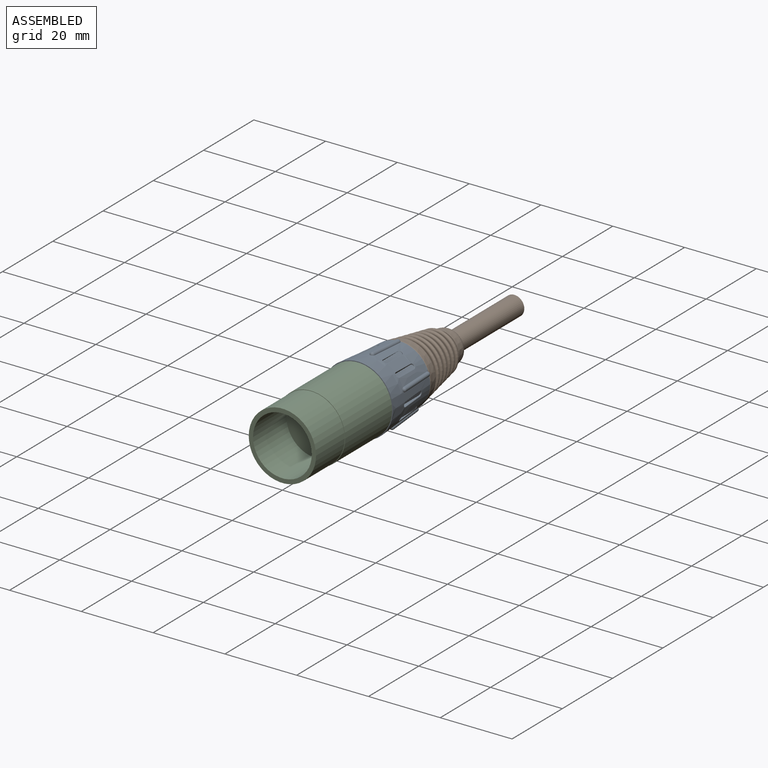
[diagram: assembled view]
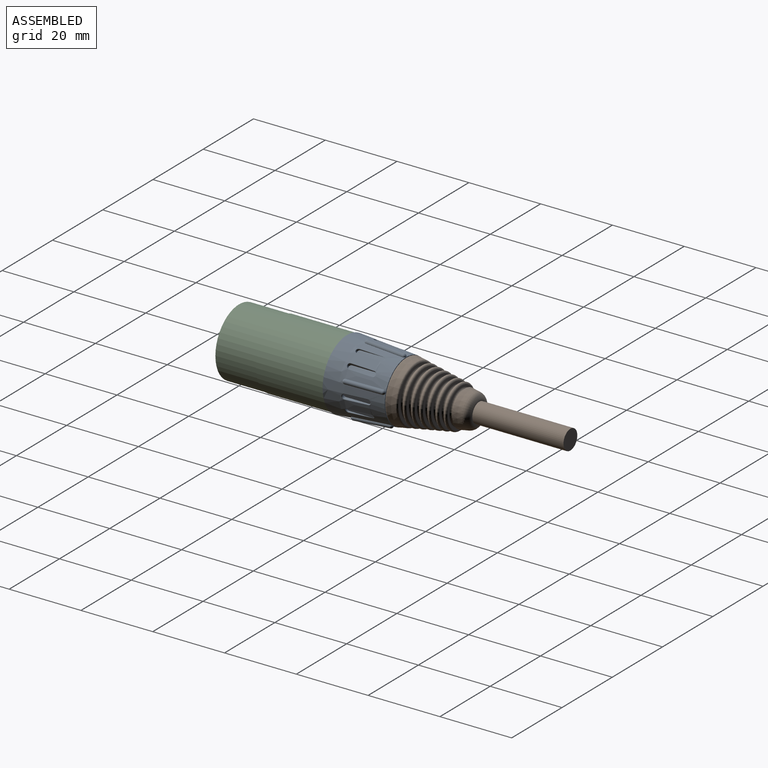
[diagram: assembled view, second angle]
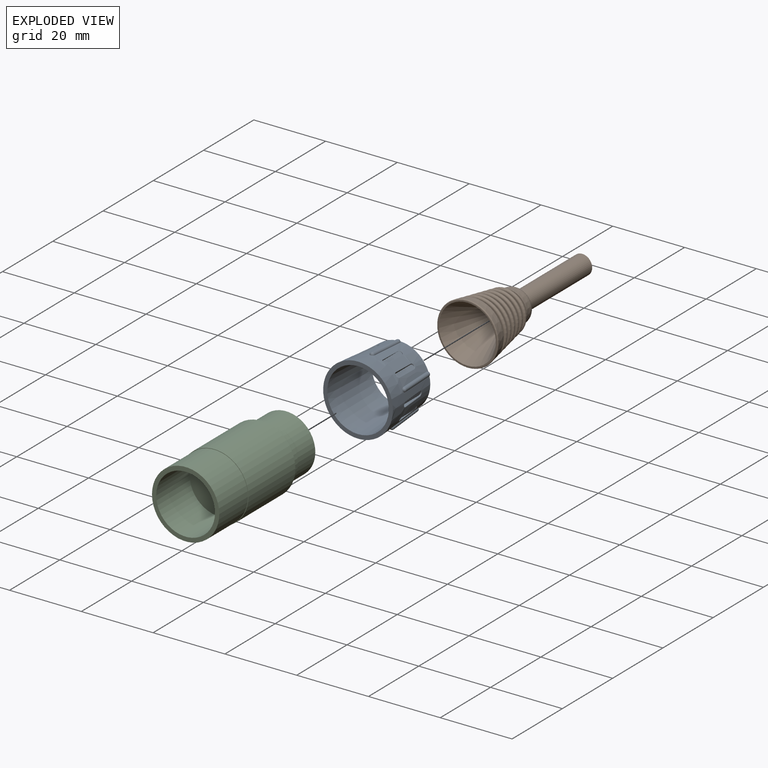
[diagram: exploded view]
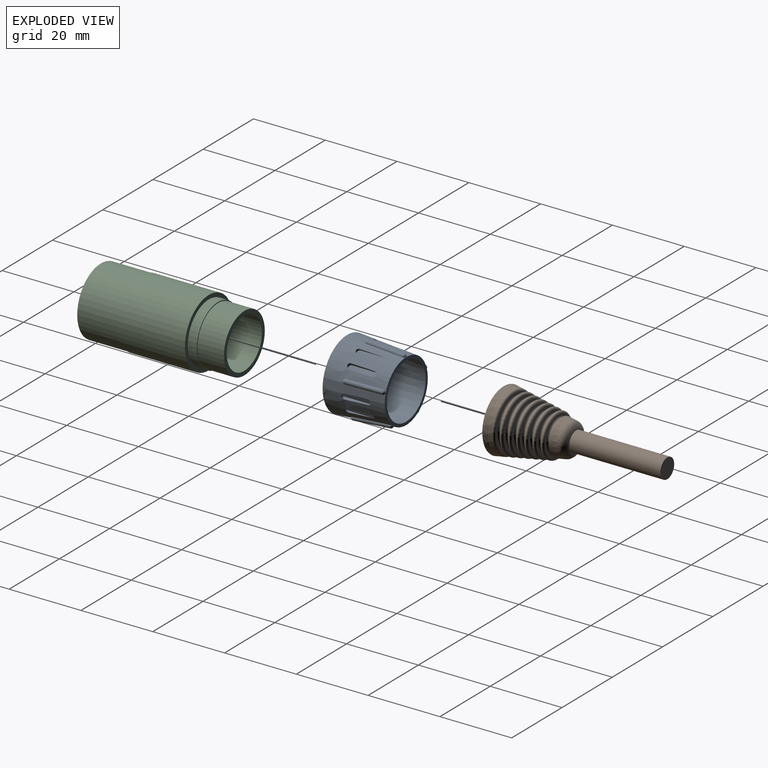
[diagram: exploded view, second angle]
ASSEMBLY  parts=3 mates=2
PART A: 159 faces, bbox 20.2x30x20.1 mm
  f0: cylinder r=0.64mm len=0.64mm, axis (-0.95,-0.07,-0.31), area 0mm2, adj f12,f43,f46
  f1: cylinder r=0.64mm len=0.64mm, axis (-0.95,-0.07,-0.31), area 0mm2, adj f12,f45,f48
  f2: cylinder r=0.64mm len=0.64mm, axis (-0.59,-0.07,0.81), area 0mm2, adj f12,f36,f39
  f3: cylinder r=0.64mm len=0.64mm, axis (-0.59,-0.07,0.81), area 0mm2, adj f12,f38,f41
  f4: cylinder r=0.64mm len=0.64mm, axis (0.59,-0.07,0.81), area 0mm2, adj f12,f29,f32
  f5: cylinder r=0.64mm len=0.64mm, axis (0.59,-0.07,0.81), area 0mm2, adj f12,f31,f34
  f6: cylinder r=0.64mm len=0.64mm, axis (0.95,-0.07,-0.31), area 0mm2, adj f12,f22,f25
  f7: cylinder r=0.64mm len=0.64mm, axis (0.95,-0.07,-0.31), area 0mm2, adj f12,f24,f27
  f8: cylinder r=0.64mm len=0.64mm, axis (0,-0.07,-1), area 0mm2, adj f12,f15,f18
  f9: cylinder r=0.64mm len=0.64mm, axis (0,-0.07,-1), area 0mm2, adj f12,f17,f20
  f10: plane 19.43x19.43mm, normal (0,-1,0), area 65.7mm2, adj f12,f13
  f11: plane 17.15x17.15mm, normal (0,1,0), area 44.3mm2, adj f12,f13
  f12: cone r=9.72mm half-angle=4deg, axis (0,-1,0), area 759.9mm2, adj f0,f1,f2,f3,f4,f5,f6,f7
  f13: cone r=8.57mm half-angle=3deg, axis (0,-1,0), area 845.6mm2, adj f10,f11
  f14: cylinder r=0.64mm len=0.64mm, axis (0,-0.07,-1), area 0mm2, adj f12,f17,f18
  f15: plane 10.14x0.73mm, normal (-1,0,0), area 0.2mm2, adj f8,f12,f16,f19
  f16: cylinder r=0.64mm len=0.64mm, axis (0,-0.07,-1), area 0mm2, adj f12,f15,f20
  f17: plane 10.14x0.73mm, normal (1,0,0), area 0.2mm2, adj f9,f12,f14,f19
  f18: sphere r=0.64mm, area 1.3mm2, adj f8,f14,f19
  f19: cylinder r=0.64mm len=10.18mm, axis (0,-1,0.07), area 20.3mm2, adj f15,f17,f18,f20
  f20: sphere r=0.64mm, area 1.3mm2, adj f9,f16,f19
  f21: cylinder r=0.64mm len=0.64mm, axis (0.95,-0.07,-0.31), area 0mm2, adj f12,f24,f25
  f22: plane 10.14x0.69mm, normal (-0.31,0,-0.95), area 0.2mm2, adj f6,f12,f23,f26
  f23: cylinder r=0.64mm len=0.64mm, axis (0.95,-0.07,-0.31), area 0mm2, adj f12,f22,f27
  f24: plane 10.14x0.69mm, normal (0.31,0,0.95), area 0.2mm2, adj f7,f12,f21,f26
  f25: sphere r=0.64mm, area 1.3mm2, adj f6,f21,f26
  f26: cylinder r=0.64mm len=10.18mm, axis (-0.07,-1,0.02), area 20.3mm2, adj f22,f24,f25,f27
  f27: sphere r=0.64mm, area 1.3mm2, adj f7,f23,f26
  f28: cylinder r=0.64mm len=0.64mm, axis (0.59,-0.07,0.81), area 0mm2, adj f12,f31,f32
  f29: plane 10.14x0.59mm, normal (0.81,0,-0.59), area 0.2mm2, adj f4,f12,f30,f33
  f30: cylinder r=0.64mm len=0.64mm, axis (0.59,-0.07,0.81), area 0mm2, adj f12,f29,f34
  f31: plane 10.14x0.59mm, normal (-0.81,0,0.59), area 0.2mm2, adj f5,f12,f28,f33
  f32: sphere r=0.64mm, area 1.3mm2, adj f4,f28,f33
  f33: cylinder r=0.64mm len=10.18mm, axis (-0.04,-1,-0.06), area 20.3mm2, adj f29,f31,f32,f34
  f34: sphere r=0.64mm, area 1.3mm2, adj f5,f30,f33
  f35: cylinder r=0.64mm len=0.64mm, axis (-0.59,-0.07,0.81), area 0mm2, adj f12,f38,f39
  f36: plane 10.14x0.59mm, normal (0.81,0,0.59), area 0.2mm2, adj f2,f12,f37,f40
  f37: cylinder r=0.64mm len=0.64mm, axis (-0.59,-0.07,0.81), area 0mm2, adj f12,f36,f41
  f38: plane 10.14x0.59mm, normal (-0.81,0,-0.59), area 0.2mm2, adj f3,f12,f35,f40
  f39: sphere r=0.64mm, area 1.3mm2, adj f2,f35,f40
  f40: cylinder r=0.64mm len=10.18mm, axis (0.04,-1,-0.06), area 20.3mm2, adj f36,f38,f39,f41
  f41: sphere r=0.64mm, area 1.3mm2, adj f3,f37,f40
  f42: cylinder r=0.64mm len=0.64mm, axis (-0.95,-0.07,-0.31), area 0mm2, adj f12,f45,f46
  f43: plane 10.14x0.69mm, normal (-0.31,0,0.95), area 0.2mm2, adj f0,f12,f44,f47
  f44: cylinder r=0.64mm len=0.64mm, axis (-0.95,-0.07,-0.31), area 0mm2, adj f12,f43,f48
  f45: plane 10.14x0.69mm, normal (0.31,0,-0.95), area 0.2mm2, adj f1,f12,f42,f47
  f46: sphere r=0.64mm, area 1.3mm2, adj f0,f42,f47
  f47: cylinder r=0.64mm len=10.18mm, axis (0.07,-1,0.02), area 20.3mm2, adj f43,f45,f46,f48
  f48: sphere r=0.64mm, area 1.3mm2, adj f1,f44,f47
  f49: cylinder r=0.64mm len=0.85mm, axis (0,0,-1), area 0.2mm2, adj f52,f53,f65
  f50: plane 4.89x0.36mm, normal (1,0,0), area 0.9mm2, adj f51,f53,f70
  f51: cylinder r=0.64mm len=1.27mm, axis (0,0,-1), area 1.2mm2, adj f50,f52,f53,f68
  f52: plane 6.35x0.72mm, normal (-1,0,0), area 3.1mm2, adj f49,f51,f53,f66
  f53: plane 7.64x1.29mm, normal (0,0,-1), area 9.3mm2, adj f49,f50,f51,f52,f67,f69
  f54: cylinder r=0.64mm len=0.85mm, axis (0,0,-1), area 0.2mm2, adj f55,f58,f59
  f55: plane 6.35x0.72mm, normal (1,0,0), area 3.1mm2, adj f54,f56,f58,f60
  f56: cylinder r=0.64mm len=1.27mm, axis (0,0,-1), area 1.2mm2, adj f55,f57,f58,f62
  f57: plane 4.89x0.36mm, normal (-1,0,0), area 0.9mm2, adj f56,f58,f64
  f58: plane 7.64x1.29mm, normal (0,0,-1), area 9.3mm2, adj f54,f55,f56,f57,f61,f63
  f59: bspline ~1.16x0.87mm, area 0.3mm2, adj f12,f54,f60,f61
  f60: bspline ~20.47x1.56mm, area 1.1mm2, adj f12,f55,f59,f62
  f61: bspline ~0.8x0.63mm, area 0.1mm2, adj f12,f58,f59,f63
  f62: bspline ~1.55x0.93mm, area 0.4mm2, adj f12,f56,f60,f64
  f63: bspline ~1.94x0.2mm, area 0.3mm2, adj f12,f58,f61,f64
  f64: bspline ~22.89x1.84mm, area 1.2mm2, adj f12,f57,f62,f63
  f65: bspline ~1.16x0.87mm, area 0.3mm2, adj f12,f49,f66,f67
  f66: bspline ~29.95x2.22mm, area 1.1mm2, adj f12,f52,f65,f68
  f67: bspline ~0.8x0.63mm, area 0.1mm2, adj f12,f53,f65,f69
  f68: bspline ~1.55x0.93mm, area 0.4mm2, adj f12,f51,f66,f70
  f69: bspline ~1.94x0.2mm, area 0.3mm2, adj f12,f53,f67,f70
  f70: bspline ~22.89x1.84mm, area 1.2mm2, adj f12,f50,f68,f69
  f71: cylinder r=0.64mm len=0.89mm, axis (0.95,0,-0.31), area 0.2mm2, adj f74,f75,f87
  f72: plane 4.89x0.34mm, normal (0.31,0,0.95), area 0.9mm2, adj f73,f75,f92
  f73: cylinder r=0.64mm len=1.43mm, axis (0.95,0,-0.31), area 1.2mm2, adj f72,f74,f75,f90
  f74: plane 6.35x0.68mm, normal (-0.31,0,-0.95), area 3.1mm2, adj f71,f73,f75,f88
  f75: plane 7.64x1.23mm, normal (0.95,0,-0.31), area 9.3mm2, adj f71,f72,f73,f74,f89,f91
  f76: cylinder r=0.64mm len=0.89mm, axis (0.95,0,-0.31), area 0.2mm2, adj f77,f80,f81
  f77: plane 6.35x0.68mm, normal (0.31,0,0.95), area 3.1mm2, adj f76,f78,f80,f82
  f78: cylinder r=0.64mm len=1.43mm, axis (0.95,0,-0.31), area 1.2mm2, adj f77,f79,f80,f84
  f79: plane 4.89x0.34mm, normal (-0.31,0,-0.95), area 0.9mm2, adj f78,f80,f86
  f80: plane 7.64x1.23mm, normal (0.95,0,-0.31), area 9.3mm2, adj f76,f77,f78,f79,f83,f85
  f81: bspline ~1.2x0.87mm, area 0.3mm2, adj f12,f76,f82,f83
  f82: bspline ~20.47x1.47mm, area 1.1mm2, adj f12,f77,f81,f84
  f83: bspline ~0.8x0.6mm, area 0.1mm2, adj f12,f80,f81,f85
  f84: bspline ~1.58x0.93mm, area 0.4mm2, adj f12,f78,f82,f86
  f85: bspline ~1.94x0.22mm, area 0.3mm2, adj f12,f80,f83,f86
  f86: bspline ~22.89x1.75mm, area 1.2mm2, adj f12,f79,f84,f85
  f87: bspline ~1.01x0.87mm, area 0.3mm2, adj f12,f71,f88,f89
  f88: bspline ~29.95x2.15mm, area 1.1mm2, adj f12,f74,f87,f90
  f89: bspline ~0.8x0.6mm, area 0.1mm2, adj f12,f75,f87,f91
  f90: bspline ~1.36x0.93mm, area 0.4mm2, adj f12,f73,f88,f92
  f91: bspline ~1.94x0.22mm, area 0.3mm2, adj f12,f75,f89,f92
  f92: bspline ~22.89x1.75mm, area 1.2mm2, adj f12,f72,f90,f91
  f93: cylinder r=0.64mm len=0.84mm, axis (0.59,0,0.81), area 0.2mm2, adj f96,f97,f109
  f94: plane 4.89x0.29mm, normal (-0.81,0,0.59), area 0.9mm2, adj f95,f97,f114
  f95: cylinder r=0.64mm len=1.45mm, axis (0.59,0,0.81), area 1.2mm2, adj f94,f96,f97,f112
  f96: plane 6.35x0.58mm, normal (0.81,0,-0.59), area 3.1mm2, adj f93,f95,f97,f110
  f97: plane 7.64x1.05mm, normal (0.59,0,0.81), area 9.3mm2, adj f93,f94,f95,f96,f111,f113
  f98: cylinder r=0.64mm len=0.84mm, axis (0.59,0,0.81), area 0.2mm2, adj f99,f102,f103
  f99: plane 6.35x0.58mm, normal (-0.81,0,0.59), area 3.1mm2, adj f98,f100,f102,f104
  f100: cylinder r=0.64mm len=1.45mm, axis (0.59,0,0.81), area 1.2mm2, adj f99,f101,f102,f106
  f101: plane 4.89x0.29mm, normal (0.81,0,-0.59), area 0.9mm2, adj f100,f102,f108
  f102: plane 7.64x1.05mm, normal (0.59,0,0.81), area 9.3mm2, adj f98,f99,f100,f101,f105,f107
  f103: bspline ~1.12x0.87mm, area 0.3mm2, adj f12,f98,f104,f105
  f104: bspline ~20.47x1.25mm, area 1.1mm2, adj f12,f99,f103,f106
  f105: bspline ~0.8x0.56mm, area 0.1mm2, adj f12,f102,f103,f107
  f106: bspline ~1.47x0.93mm, area 0.4mm2, adj f12,f100,f104,f108
  f107: bspline ~1.94x0.23mm, area 0.3mm2, adj f12,f102,f105,f108
  f108: bspline ~22.89x1.54mm, area 1.2mm2, adj f12,f101,f106,f107
  f109: bspline ~0.97x0.87mm, area 0.3mm2, adj f12,f93,f110,f111
  f110: bspline ~29.95x1.86mm, area 1.1mm2, adj f12,f96,f109,f112
  f111: bspline ~0.8x0.52mm, area 0.1mm2, adj f12,f97,f109,f113
  f112: bspline ~1.21x1.04mm, area 0.4mm2, adj f12,f95,f110,f114
  f113: bspline ~1.94x0.24mm, area 0.3mm2, adj f12,f97,f111,f114
  f114: bspline ~22.89x1.49mm, area 1.2mm2, adj f12,f94,f112,f113
  f115: cylinder r=0.64mm len=0.84mm, axis (-0.59,0,0.81), area 0.2mm2, adj f118,f119,f131
  f116: plane 4.89x0.29mm, normal (-0.81,0,-0.59), area 0.9mm2, adj f117,f119,f136
  f117: cylinder r=0.64mm len=1.45mm, axis (-0.59,0,0.81), area 1.2mm2, adj f116,f118,f119,f134
  f118: plane 6.35x0.58mm, normal (0.81,0,0.59), area 3.1mm2, adj f115,f117,f119,f132
  f119: plane 7.64x1.05mm, normal (-0.59,0,0.81), area 9.3mm2, adj f115,f116,f117,f118,f133,f135
  f120: cylinder r=0.64mm len=0.84mm, axis (-0.59,0,0.81), area 0.2mm2, adj f121,f124,f125
  f121: plane 6.35x0.58mm, normal (-0.81,0,-0.59), area 3.1mm2, adj f120,f122,f124,f126
  f122: cylinder r=0.64mm len=1.45mm, axis (-0.59,0,0.81), area 1.2mm2, adj f121,f123,f124,f128
  f123: plane 4.89x0.29mm, normal (0.81,0,0.59), area 0.9mm2, adj f122,f124,f130
  f124: plane 7.64x1.05mm, normal (-0.59,0,0.81), area 9.3mm2, adj f120,f121,f122,f123,f127,f129
  f125: bspline ~0.97x0.87mm, area 0.3mm2, adj f12,f120,f126,f127
  f126: bspline ~20.47x1.32mm, area 1.1mm2, adj f12,f121,f125,f128
  f127: bspline ~0.8x0.52mm, area 0.1mm2, adj f12,f124,f125,f129
  f128: bspline ~1.21x1.04mm, area 0.4mm2, adj f12,f122,f126,f130
  f129: bspline ~1.94x0.24mm, area 0.3mm2, adj f12,f124,f127,f130
  f130: bspline ~22.89x1.49mm, area 1.2mm2, adj f12,f123,f128,f129
  f131: bspline ~1.12x0.87mm, area 0.3mm2, adj f12,f115,f132,f133
  f132: bspline ~29.95x1.79mm, area 1.1mm2, adj f12,f118,f131,f134
  f133: bspline ~0.8x0.56mm, area 0.1mm2, adj f12,f119,f131,f135
  f134: bspline ~1.47x0.93mm, area 0.4mm2, adj f12,f117,f132,f136
  f135: bspline ~1.94x0.23mm, area 0.3mm2, adj f12,f119,f133,f136
  f136: bspline ~22.89x1.54mm, area 1.2mm2, adj f12,f116,f134,f135
  f137: cylinder r=0.64mm len=0.89mm, axis (-0.95,0,-0.31), area 0.2mm2, adj f140,f141,f153
  f138: plane 4.89x0.34mm, normal (0.31,0,-0.95), area 0.9mm2, adj f139,f141,f158
  f139: cylinder r=0.64mm len=1.43mm, axis (-0.95,0,-0.31), area 1.2mm2, adj f138,f140,f141,f156
  f140: plane 6.35x0.68mm, normal (-0.31,0,0.95), area 3.1mm2, adj f137,f139,f141,f154
  f141: plane 7.64x1.23mm, normal (-0.95,0,-0.31), area 9.3mm2, adj f137,f138,f139,f140,f155,f157
  f142: cylinder r=0.64mm len=0.89mm, axis (-0.95,0,-0.31), area 0.2mm2, adj f143,f146,f147
  f143: plane 6.35x0.68mm, normal (0.31,0,-0.95), area 3.1mm2, adj f142,f144,f146,f148
  f144: cylinder r=0.64mm len=1.43mm, axis (-0.95,0,-0.31), area 1.2mm2, adj f143,f145,f146,f150
  f145: plane 4.89x0.34mm, normal (-0.31,0,0.95), area 0.9mm2, adj f144,f146,f152
  f146: plane 7.64x1.23mm, normal (-0.95,0,-0.31), area 9.3mm2, adj f142,f143,f144,f145,f149,f151
  f147: bspline ~1.01x0.87mm, area 0.3mm2, adj f12,f142,f148,f149
  f148: bspline ~20.47x1.51mm, area 1.1mm2, adj f12,f143,f147,f150
  f149: bspline ~0.8x0.6mm, area 0.1mm2, adj f12,f146,f147,f151
  f150: bspline ~1.36x0.93mm, area 0.4mm2, adj f12,f144,f148,f152
  f151: bspline ~1.94x0.22mm, area 0.3mm2, adj f12,f146,f149,f152
  f152: bspline ~22.89x1.75mm, area 1.2mm2, adj f12,f145,f150,f151
  f153: bspline ~1.2x0.87mm, area 0.3mm2, adj f12,f137,f154,f155
  f154: bspline ~29.95x2.1mm, area 1.1mm2, adj f12,f140,f153,f156
  f155: bspline ~0.8x0.6mm, area 0.1mm2, adj f12,f141,f153,f157
  f156: bspline ~1.58x0.93mm, area 0.4mm2, adj f12,f139,f154,f158
  f157: bspline ~1.94x0.22mm, area 0.3mm2, adj f12,f141,f155,f158
  f158: bspline ~22.89x1.75mm, area 1.2mm2, adj f12,f138,f156,f157
PART B: 36 faces, bbox 18.5x45.7x18.5 mm
  f0: cone r=8.57mm half-angle=10deg, axis (0,-1,0), area 130.2mm2, adj f31,f35
  f1: plane 16.54x16.54mm, normal (0,-1,0), area 16.9mm2, adj f32,f35
  f2: plane 14.46x14.46mm, normal (0,-1,0), area 14.9mm2, adj f4,f30
  f3: plane 15.17x15.17mm, normal (0,1,0), area 31.6mm2, adj f4,f31
  f4: torus R=6.89mm, axis (0,-1,0), area 65.9mm2, adj f2,f3
  f5: plane 13.74x13.74mm, normal (0,-1,0), area 14.2mm2, adj f7,f29
  f6: plane 14.46x14.46mm, normal (0,1,0), area 30mm2, adj f7,f30
  f7: torus R=6.53mm, axis (0,-1,0), area 62.3mm2, adj f5,f6
  f8: plane 13.02x13.02mm, normal (0,-1,0), area 13.4mm2, adj f10,f28
  f9: plane 13.74x13.74mm, normal (0,1,0), area 28.5mm2, adj f10,f29
  f10: torus R=6.17mm, axis (0,-1,0), area 58.7mm2, adj f8,f9
  f11: plane 12.31x12.31mm, normal (0,-1,0), area 12.7mm2, adj f13,f27
  f12: plane 13.02x13.02mm, normal (0,1,0), area 26.9mm2, adj f13,f28
  f13: torus R=5.82mm, axis (0,-1,0), area 55.1mm2, adj f11,f12
  f14: plane 11.59x11.59mm, normal (0,-1,0), area 11.9mm2, adj f16,f26
  f15: plane 12.31x12.31mm, normal (0,1,0), area 25.4mm2, adj f16,f27
  f16: torus R=5.46mm, axis (0,-1,0), area 51.5mm2, adj f14,f15
  f17: plane 10.87x10.87mm, normal (0,-1,0), area 11.1mm2, adj f19,f25
  f18: plane 11.59x11.59mm, normal (0,1,0), area 23.8mm2, adj f19,f26
  f19: torus R=5.1mm, axis (0,-1,0), area 47.9mm2, adj f17,f18
  f20: plane 10.87x10.87mm, normal (0,1,0), area 18mm2, adj f22,f25
  f21: plane 10.1x10.1mm, normal (0,-1,0), area 5.3mm2, adj f22,f23
  f22: torus R=4.88mm, axis (0,-1,0), area 45.7mm2, adj f20,f21
  f23: cone r=5.23mm half-angle=10deg, axis (0,-1,0), area 73mm2, adj f21,f24
  f24: torus R=2.76mm, axis (0,-1,0), area 64.9mm2, adj f23,f33
  f25: torus R=5.44mm, axis (0,1,0), area 57.8mm2, adj f17,f20
  f26: torus R=5.79mm, axis (0,1,0), area 61.4mm2, adj f14,f18
  f27: torus R=6.15mm, axis (0,1,0), area 64.9mm2, adj f11,f15
  f28: torus R=6.51mm, axis (0,1,0), area 68.5mm2, adj f8,f12
  f29: torus R=6.87mm, axis (0,1,0), area 72.1mm2, adj f5,f9
  f30: torus R=7.23mm, axis (0,1,0), area 75.7mm2, adj f2,f6
  f31: torus R=7.59mm, axis (0,1,0), area 35.2mm2, adj f0,f3
  f32: cone r=7.94mm half-angle=25deg, axis (0,-1,0), area 468.3mm2, adj f1
  f33: cylinder r=2.75mm len=25.4mm, axis (0,-1,0), area 438.9mm2, adj f24,f34
  f34: plane 5.5x5.5mm, normal (0,1,0), area 23.8mm2, adj f33
  f35: torus R=8.27mm, axis (0,-1,0), area 23.5mm2, adj f0,f1
PART C: 13 faces, bbox 19x40x19 mm
  f0: cylinder r=9.37mm len=18.75mm, axis (0,-1,0), area 673.1mm2, adj f1,f4
  f1: plane 18.75x18.75mm, normal (0,-1,0), area 65.2mm2, adj f0,f9
  f2: cylinder r=9.5mm len=19mm, axis (0,-1,0), area 1114.3mm2, adj f3,f4
  f3: plane 19x19mm, normal (0,1,0), area 62.8mm2, adj f2,f5
  f4: plane 19x19mm, normal (0,-1,0), area 7.5mm2, adj f0,f2
  f5: cylinder r=8.38mm len=16.76mm, axis (0,-1,0), area 133.8mm2, adj f3,f6
  f6: plane 16.76x16.76mm, normal (0,1,0), area 13.2mm2, adj f5,f7
  f7: cylinder r=8.13mm len=16.26mm, axis (0,-1,0), area 376.2mm2, adj f6,f8
  f8: plane 16.26x16.26mm, normal (0,1,0), area 54.3mm2, adj f7,f11
  f9: cylinder r=8.19mm len=16.38mm, axis (0,-1,0), area 686.3mm2, adj f1,f10
  f10: plane 16.38x16.38mm, normal (0,-1,0), area 210.8mm2, adj f9
  f11: cylinder r=6.99mm len=25.15mm, axis (0,1,0), area 1103.6mm2, adj f8,f12
  f12: plane 13.97x13.97mm, normal (0,1,0), area 153.3mm2, adj f11
PLACE A t=(0,30.1,0)mm
PLACE B t=(0,46.61,0)mm
PLACE C at identity
MATE revolute B.f0 <-> A.f12  axis (0,-1,0) through (0,46.61,0)mm
MATE revolute A.f12 <-> C.f0  axis (0,-1,0) through (0,30.1,0)mm
